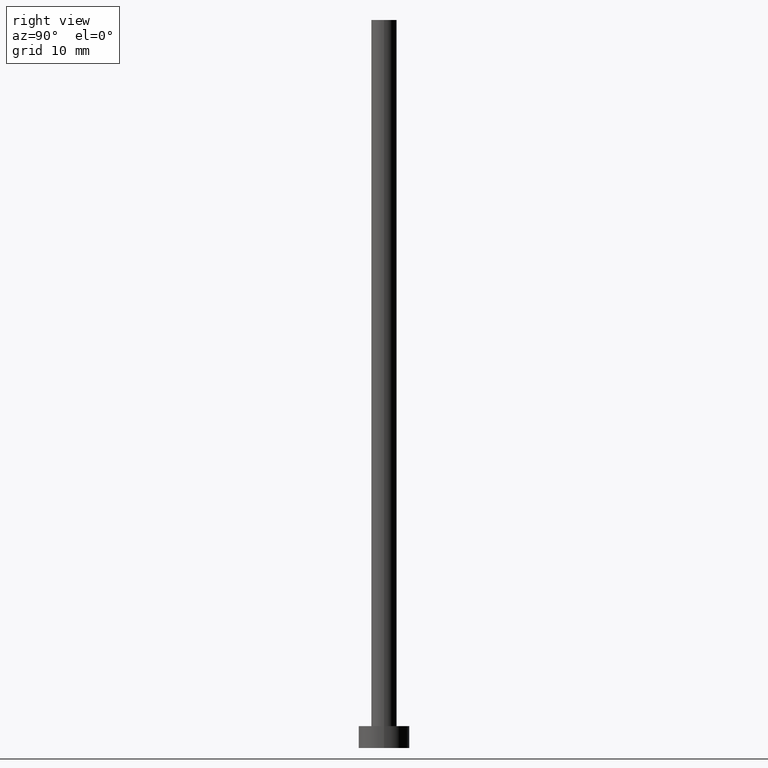
[diagram: clean part render]
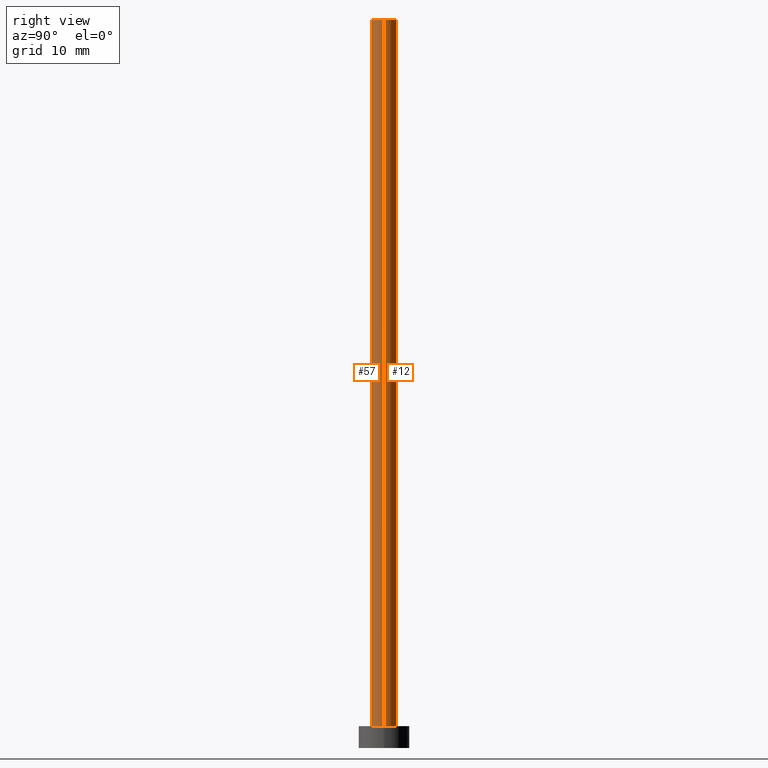
[diagram: same view with one multi-face feature highlighted, each face labeled with its STEP entity id]
A machine part, right view. The highlighted faces form ONE feature: a constant-radius fillet chain: 2 tangent blend faces with common blend radius 1.75 mm. The faces share edges in the B-rep.
Their STEP definitions:
[1] entity #12 (Cylinder):
#2 = CARTESIAN_POINT ( 'NONE',  ( 0.000000000000000000, 0.000000000000000000, 100.0000000000000000 ) ) ;
#8 = CARTESIAN_POINT ( 'NONE',  ( 1.750000000000000000, 2.143131898507867804E-16, 100.0000000000000000 ) ) ;
#11 = VERTEX_POINT ( 'NONE', #252 ) ;
#12 = ADVANCED_FACE ( 'NONE', ( #198 ), #95, .T. ) ;
#14 = ORIENTED_EDGE ( 'NONE', *, *, #24, .F. ) ;
#16 = DIRECTION ( 'NONE',  ( 1.000000000000000000, 0.000000000000000000, 0.000000000000000000 ) ) ;
#19 = AXIS2_PLACEMENT_3D ( 'NONE', #2, #194, #16 ) ;
#20 = DIRECTION ( 'NONE',  ( 0.000000000000000000, 0.000000000000000000, 1.000000000000000000 ) ) ;
#23 = AXIS2_PLACEMENT_3D ( 'NONE', #149, #20, #109 ) ;
#24 = EDGE_CURVE ( 'NONE', #11, #192, #119, .T. ) ;
#33 = CARTESIAN_POINT ( 'NONE',  ( 1.750000000000000000, 2.143131898507867804E-16, 3.000000000000000000 ) ) ;
#50 = AXIS2_PLACEMENT_3D ( 'NONE', #219, #235, #96 ) ;
#51 = CARTESIAN_POINT ( 'NONE',  ( -1.750000000000000000, 0.000000000000000000, 3.000000000000000000 ) ) ;
#52 = EDGE_CURVE ( 'NONE', #55, #11, #54, .T. ) ;
#54 = CIRCLE ( 'NONE', #19, 1.750000000000000000 ) ;
#55 = VERTEX_POINT ( 'NONE', #236 ) ;
#64 = CIRCLE ( 'NONE', #23, 1.750000000000000000 ) ;
#69 = LINE ( 'NONE', #8, #251 ) ;
#70 = ORIENTED_EDGE ( 'NONE', *, *, #52, .F. ) ;
#76 = DIRECTION ( 'NONE',  ( -0.000000000000000000, -0.000000000000000000, -1.000000000000000000 ) ) ;
#92 = VERTEX_POINT ( 'NONE', #33 ) ;
#95 = CYLINDRICAL_SURFACE ( 'NONE', #50, 1.750000000000000000 ) ;
#96 = DIRECTION ( 'NONE',  ( -1.000000000000000000, 0.000000000000000000, 0.000000000000000000 ) ) ;
#100 = ORIENTED_EDGE ( 'NONE', *, *, #161, .T. ) ;
#109 = DIRECTION ( 'NONE',  ( 1.000000000000000000, 0.000000000000000000, 0.000000000000000000 ) ) ;
#111 = CARTESIAN_POINT ( 'NONE',  ( -1.750000000000000000, 0.000000000000000000, 100.0000000000000000 ) ) ;
#119 = LINE ( 'NONE', #111, #239 ) ;
#131 = EDGE_LOOP ( 'NONE', ( #70, #100, #229, #14 ) ) ;
#149 = CARTESIAN_POINT ( 'NONE',  ( 0.000000000000000000, 0.000000000000000000, 3.000000000000000000 ) ) ;
#161 = EDGE_CURVE ( 'NONE', #55, #92, #69, .T. ) ;
#181 = DIRECTION ( 'NONE',  ( -0.000000000000000000, -0.000000000000000000, -1.000000000000000000 ) ) ;
#192 = VERTEX_POINT ( 'NONE', #51 ) ;
#194 = DIRECTION ( 'NONE',  ( 0.000000000000000000, 0.000000000000000000, 1.000000000000000000 ) ) ;
#198 = FACE_OUTER_BOUND ( 'NONE', #131, .T. ) ;
#219 = CARTESIAN_POINT ( 'NONE',  ( 0.000000000000000000, 0.000000000000000000, 100.0000000000000000 ) ) ;
#224 = EDGE_CURVE ( 'NONE', #92, #192, #64, .T. ) ;
#229 = ORIENTED_EDGE ( 'NONE', *, *, #224, .T. ) ;
#235 = DIRECTION ( 'NONE',  ( -0.000000000000000000, -0.000000000000000000, -1.000000000000000000 ) ) ;
#236 = CARTESIAN_POINT ( 'NONE',  ( 1.750000000000000000, 2.143131898507867804E-16, 100.0000000000000000 ) ) ;
#239 = VECTOR ( 'NONE', #181, 1000.000000000000000 ) ;
#251 = VECTOR ( 'NONE', #76, 1000.000000000000000 ) ;
#252 = CARTESIAN_POINT ( 'NONE',  ( -1.750000000000000000, 0.000000000000000000, 100.0000000000000000 ) ) ;
[2] entity #57 (Cylinder):
#8 = CARTESIAN_POINT ( 'NONE',  ( 1.750000000000000000, 2.143131898507867804E-16, 100.0000000000000000 ) ) ;
#11 = VERTEX_POINT ( 'NONE', #252 ) ;
#22 = DIRECTION ( 'NONE',  ( -0.000000000000000000, -0.000000000000000000, -1.000000000000000000 ) ) ;
#24 = EDGE_CURVE ( 'NONE', #11, #192, #119, .T. ) ;
#33 = CARTESIAN_POINT ( 'NONE',  ( 1.750000000000000000, 2.143131898507867804E-16, 3.000000000000000000 ) ) ;
#37 = DIRECTION ( 'NONE',  ( 0.000000000000000000, 0.000000000000000000, 1.000000000000000000 ) ) ;
#40 = CYLINDRICAL_SURFACE ( 'NONE', #247, 1.750000000000000000 ) ;
#51 = CARTESIAN_POINT ( 'NONE',  ( -1.750000000000000000, 0.000000000000000000, 3.000000000000000000 ) ) ;
#53 = ORIENTED_EDGE ( 'NONE', *, *, #24, .T. ) ;
#55 = VERTEX_POINT ( 'NONE', #236 ) ;
#57 = ADVANCED_FACE ( 'NONE', ( #75 ), #40, .T. ) ;
#62 = DIRECTION ( 'NONE',  ( -1.000000000000000000, 0.000000000000000000, 0.000000000000000000 ) ) ;
#68 = EDGE_CURVE ( 'NONE', #192, #92, #199, .T. ) ;
#69 = LINE ( 'NONE', #8, #251 ) ;
#72 = EDGE_LOOP ( 'NONE', ( #169, #107, #53, #110 ) ) ;
#75 = FACE_OUTER_BOUND ( 'NONE', #72, .T. ) ;
#76 = DIRECTION ( 'NONE',  ( -0.000000000000000000, -0.000000000000000000, -1.000000000000000000 ) ) ;
#92 = VERTEX_POINT ( 'NONE', #33 ) ;
#106 = DIRECTION ( 'NONE',  ( 0.000000000000000000, 0.000000000000000000, 1.000000000000000000 ) ) ;
#107 = ORIENTED_EDGE ( 'NONE', *, *, #170, .F. ) ;
#110 = ORIENTED_EDGE ( 'NONE', *, *, #68, .T. ) ;
#111 = CARTESIAN_POINT ( 'NONE',  ( -1.750000000000000000, 0.000000000000000000, 100.0000000000000000 ) ) ;
#119 = LINE ( 'NONE', #111, #239 ) ;
#142 = CARTESIAN_POINT ( 'NONE',  ( 0.000000000000000000, 0.000000000000000000, 3.000000000000000000 ) ) ;
#156 = CARTESIAN_POINT ( 'NONE',  ( 0.000000000000000000, 0.000000000000000000, 100.0000000000000000 ) ) ;
#161 = EDGE_CURVE ( 'NONE', #55, #92, #69, .T. ) ;
#165 = CARTESIAN_POINT ( 'NONE',  ( 0.000000000000000000, 0.000000000000000000, 100.0000000000000000 ) ) ;
#169 = ORIENTED_EDGE ( 'NONE', *, *, #161, .F. ) ;
#170 = EDGE_CURVE ( 'NONE', #11, #55, #221, .T. ) ;
#181 = DIRECTION ( 'NONE',  ( -0.000000000000000000, -0.000000000000000000, -1.000000000000000000 ) ) ;
#188 = DIRECTION ( 'NONE',  ( 1.000000000000000000, 0.000000000000000000, 0.000000000000000000 ) ) ;
#192 = VERTEX_POINT ( 'NONE', #51 ) ;
#196 = DIRECTION ( 'NONE',  ( 1.000000000000000000, 0.000000000000000000, 0.000000000000000000 ) ) ;
#199 = CIRCLE ( 'NONE', #231, 1.750000000000000000 ) ;
#207 = AXIS2_PLACEMENT_3D ( 'NONE', #165, #37, #188 ) ;
#221 = CIRCLE ( 'NONE', #207, 1.750000000000000000 ) ;
#231 = AXIS2_PLACEMENT_3D ( 'NONE', #142, #106, #196 ) ;
#236 = CARTESIAN_POINT ( 'NONE',  ( 1.750000000000000000, 2.143131898507867804E-16, 100.0000000000000000 ) ) ;
#239 = VECTOR ( 'NONE', #181, 1000.000000000000000 ) ;
#247 = AXIS2_PLACEMENT_3D ( 'NONE', #156, #22, #62 ) ;
#251 = VECTOR ( 'NONE', #76, 1000.000000000000000 ) ;
#252 = CARTESIAN_POINT ( 'NONE',  ( -1.750000000000000000, 0.000000000000000000, 100.0000000000000000 ) ) ;